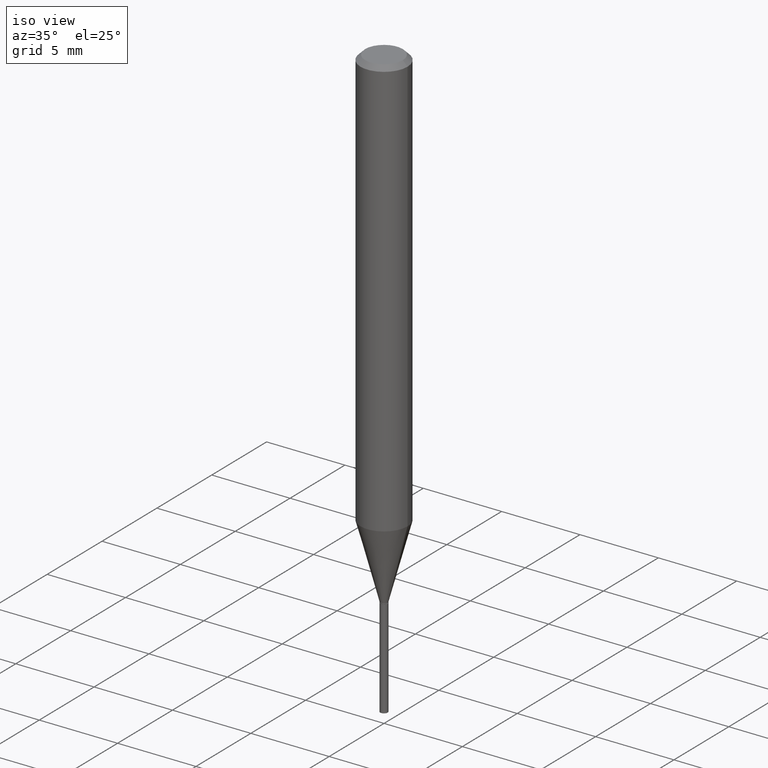
[diagram: clean part render]
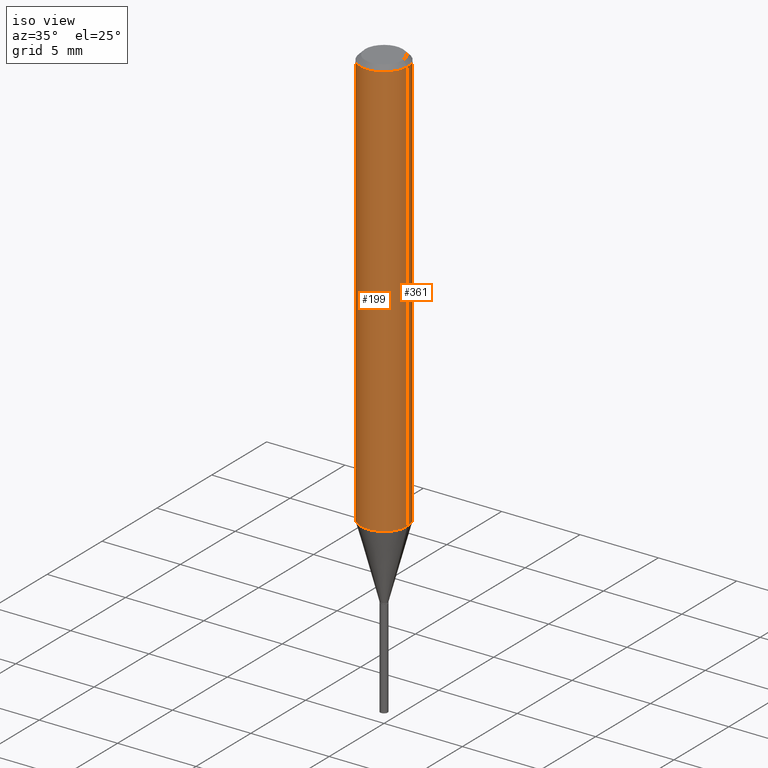
[diagram: same view with one multi-face feature highlighted, each face labeled with its STEP entity id]
A machine part, iso view. The highlighted faces form ONE feature: a constant-radius fillet chain: 2 tangent blend faces with common blend radius 1.4999 mm. The faces share edges in the B-rep.
Their STEP definitions:
[1] entity #199 (Cylinder):
#30 = CARTESIAN_POINT ( 'NONE',  ( 0.05905000000000006771, -4.123439461173745257E-16, 2.879382386107503723E-30 ) ) ;
#33 = CARTESIAN_POINT ( 'NONE',  ( 0.05904999999999999832, -4.535783407291118600E-16, -0.01181000000000007218 ) ) ;
#60 = AXIS2_PLACEMENT_3D ( 'NONE', #179, #219, #126 ) ;
#76 = CARTESIAN_POINT ( 'NONE',  ( 0.000000000000000000, 0.000000000000000000, 0.000000000000000000 ) ) ;
#80 = ORIENTED_EDGE ( 'NONE', *, *, #221, .F. ) ;
#83 = VECTOR ( 'NONE', #298, 39.37007874015748143 ) ;
#106 = DIRECTION ( 'NONE',  ( 1.000000000000000000, -6.982962677686264344E-15, 0.000000000000000000 ) ) ;
#108 = DIRECTION ( 'NONE',  ( -2.445468806185136597E-29, 3.491481338843145583E-15, 1.000000000000000000 ) ) ;
#126 = DIRECTION ( 'NONE',  ( 1.000000000000000000, -6.982962677686266711E-15, 0.000000000000000000 ) ) ;
#140 = CARTESIAN_POINT ( 'NONE',  ( -0.05904999999999999832, -1.443572999611519884E-15, -0.01181000000000007218 ) ) ;
#141 = AXIS2_PLACEMENT_3D ( 'NONE', #239, #404, #106 ) ;
#143 = CARTESIAN_POINT ( 'NONE',  ( -0.05905000000000006771, 4.195754854663396409E-16, -2.904631170795525045E-30 ) ) ;
#153 = VERTEX_POINT ( 'NONE', #178 ) ;
#178 = CARTESIAN_POINT ( 'NONE',  ( -0.05905000000000013710, -3.265487090077642716E-15, -1.055443869783069699 ) ) ;
#179 = CARTESIAN_POINT ( 'NONE',  ( 2.888098660104664204E-31, -4.123439461173780263E-17, -0.01181000000000007218 ) ) ;
#199 = ADVANCED_FACE ( 'NONE', ( #340 ), #222, .T. ) ;
#202 = ORIENTED_EDGE ( 'NONE', *, *, #250, .T. ) ;
#211 = EDGE_CURVE ( 'NONE', #313, #231, #488, .T. ) ;
#219 = DIRECTION ( 'NONE',  ( -2.445468806185136597E-29, 3.491481338843145583E-15, 1.000000000000000000 ) ) ;
#221 = EDGE_CURVE ( 'NONE', #153, #283, #486, .T. ) ;
#222 = CYLINDRICAL_SURFACE ( 'NONE', #382, 0.05905000000000006771 ) ;
#224 = DIRECTION ( 'NONE',  ( -2.445468806185136877E-29, 3.491481338843145188E-15, 1.000000000000000000 ) ) ;
#231 = VERTEX_POINT ( 'NONE', #33 ) ;
#239 = CARTESIAN_POINT ( 'NONE',  ( 2.581055060233824275E-29, -3.685062575543982998E-15, -1.055443869783069699 ) ) ;
#250 = EDGE_CURVE ( 'NONE', #153, #313, #359, .T. ) ;
#275 = EDGE_LOOP ( 'NONE', ( #80, #202, #310, #360 ) ) ;
#276 = CARTESIAN_POINT ( 'NONE',  ( 0.05905000000000013710, -4.097406521661357129E-15, -1.055443869783069699 ) ) ;
#283 = VERTEX_POINT ( 'NONE', #140 ) ;
#292 = DIRECTION ( 'NONE',  ( 1.000000000000000000, -6.982962677686266711E-15, 4.876176775795936353E-29 ) ) ;
#298 = DIRECTION ( 'NONE',  ( -2.445468806185136877E-29, 3.491481338843145188E-15, 1.000000000000000000 ) ) ;
#310 = ORIENTED_EDGE ( 'NONE', *, *, #211, .T. ) ;
#312 = CIRCLE ( 'NONE', #60, 0.05904999999999999832 ) ;
#313 = VERTEX_POINT ( 'NONE', #276 ) ;
#332 = EDGE_CURVE ( 'NONE', #283, #231, #312, .T. ) ;
#340 = FACE_OUTER_BOUND ( 'NONE', #275, .T. ) ;
#359 = CIRCLE ( 'NONE', #141, 0.05905000000000013710 ) ;
#360 = ORIENTED_EDGE ( 'NONE', *, *, #332, .F. ) ;
#382 = AXIS2_PLACEMENT_3D ( 'NONE', #76, #108, #292 ) ;
#404 = DIRECTION ( 'NONE',  ( -2.445468806185136597E-29, 3.491481338843145583E-15, 1.000000000000000000 ) ) ;
#456 = VECTOR ( 'NONE', #224, 39.37007874015748143 ) ;
#486 = LINE ( 'NONE', #143, #83 ) ;
#488 = LINE ( 'NONE', #30, #456 ) ;
[2] entity #361 (Cylinder):
#11 = AXIS2_PLACEMENT_3D ( 'NONE', #163, #364, #138 ) ;
#23 = CYLINDRICAL_SURFACE ( 'NONE', #462, 0.05905000000000006771 ) ;
#30 = CARTESIAN_POINT ( 'NONE',  ( 0.05905000000000006771, -4.123439461173745257E-16, 2.879382386107503723E-30 ) ) ;
#33 = CARTESIAN_POINT ( 'NONE',  ( 0.05904999999999999832, -4.535783407291118600E-16, -0.01181000000000007218 ) ) ;
#43 = ORIENTED_EDGE ( 'NONE', *, *, #410, .T. ) ;
#45 = ORIENTED_EDGE ( 'NONE', *, *, #221, .T. ) ;
#67 = CIRCLE ( 'NONE', #226, 0.05904999999999999832 ) ;
#83 = VECTOR ( 'NONE', #298, 39.37007874015748143 ) ;
#89 = DIRECTION ( 'NONE',  ( -2.445468806185136597E-29, 3.491481338843145583E-15, 1.000000000000000000 ) ) ;
#138 = DIRECTION ( 'NONE',  ( 1.000000000000000000, -6.982962677686264344E-15, 0.000000000000000000 ) ) ;
#140 = CARTESIAN_POINT ( 'NONE',  ( -0.05904999999999999832, -1.443572999611519884E-15, -0.01181000000000007218 ) ) ;
#143 = CARTESIAN_POINT ( 'NONE',  ( -0.05905000000000006771, 4.195754854663396409E-16, -2.904631170795525045E-30 ) ) ;
#153 = VERTEX_POINT ( 'NONE', #178 ) ;
#163 = CARTESIAN_POINT ( 'NONE',  ( 2.581055060233824275E-29, -3.685062575543982998E-15, -1.055443869783069699 ) ) ;
#168 = ORIENTED_EDGE ( 'NONE', *, *, #211, .F. ) ;
#178 = CARTESIAN_POINT ( 'NONE',  ( -0.05905000000000013710, -3.265487090077642716E-15, -1.055443869783069699 ) ) ;
#211 = EDGE_CURVE ( 'NONE', #313, #231, #488, .T. ) ;
#221 = EDGE_CURVE ( 'NONE', #153, #283, #486, .T. ) ;
#224 = DIRECTION ( 'NONE',  ( -2.445468806185136877E-29, 3.491481338843145188E-15, 1.000000000000000000 ) ) ;
#226 = AXIS2_PLACEMENT_3D ( 'NONE', #453, #412, #230 ) ;
#230 = DIRECTION ( 'NONE',  ( 1.000000000000000000, -6.982962677686266711E-15, 0.000000000000000000 ) ) ;
#231 = VERTEX_POINT ( 'NONE', #33 ) ;
#244 = EDGE_LOOP ( 'NONE', ( #43, #45, #465, #168 ) ) ;
#257 = DIRECTION ( 'NONE',  ( 1.000000000000000000, -6.982962677686266711E-15, 4.876176775795936353E-29 ) ) ;
#276 = CARTESIAN_POINT ( 'NONE',  ( 0.05905000000000013710, -4.097406521661357129E-15, -1.055443869783069699 ) ) ;
#283 = VERTEX_POINT ( 'NONE', #140 ) ;
#298 = DIRECTION ( 'NONE',  ( -2.445468806185136877E-29, 3.491481338843145188E-15, 1.000000000000000000 ) ) ;
#304 = CIRCLE ( 'NONE', #11, 0.05905000000000013710 ) ;
#313 = VERTEX_POINT ( 'NONE', #276 ) ;
#361 = ADVANCED_FACE ( 'NONE', ( #433 ), #23, .T. ) ;
#364 = DIRECTION ( 'NONE',  ( -2.445468806185136597E-29, 3.491481338843145583E-15, 1.000000000000000000 ) ) ;
#410 = EDGE_CURVE ( 'NONE', #313, #153, #304, .T. ) ;
#412 = DIRECTION ( 'NONE',  ( -2.445468806185136597E-29, 3.491481338843145583E-15, 1.000000000000000000 ) ) ;
#433 = FACE_OUTER_BOUND ( 'NONE', #244, .T. ) ;
#442 = CARTESIAN_POINT ( 'NONE',  ( 0.000000000000000000, 0.000000000000000000, 0.000000000000000000 ) ) ;
#453 = CARTESIAN_POINT ( 'NONE',  ( 2.888098660104664204E-31, -4.123439461173780263E-17, -0.01181000000000007218 ) ) ;
#456 = VECTOR ( 'NONE', #224, 39.37007874015748143 ) ;
#462 = AXIS2_PLACEMENT_3D ( 'NONE', #442, #89, #257 ) ;
#465 = ORIENTED_EDGE ( 'NONE', *, *, #489, .F. ) ;
#486 = LINE ( 'NONE', #143, #83 ) ;
#488 = LINE ( 'NONE', #30, #456 ) ;
#489 = EDGE_CURVE ( 'NONE', #231, #283, #67, .T. ) ;